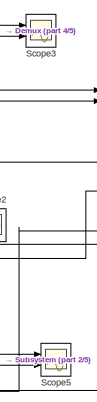
[diagram: root canvas - part 1/5, top right region]
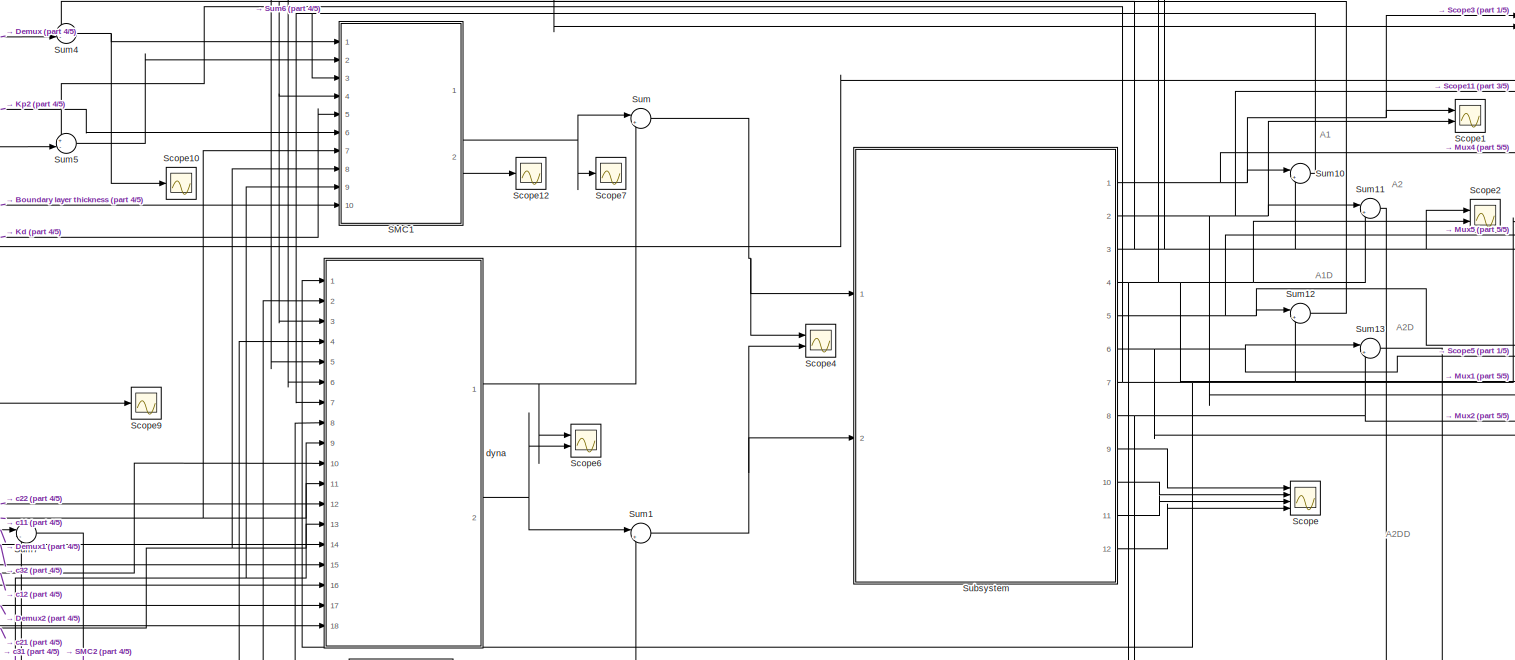
[diagram: root canvas - part 2/5, central region]
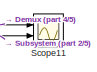
[diagram: root canvas - part 3/5, top right region]
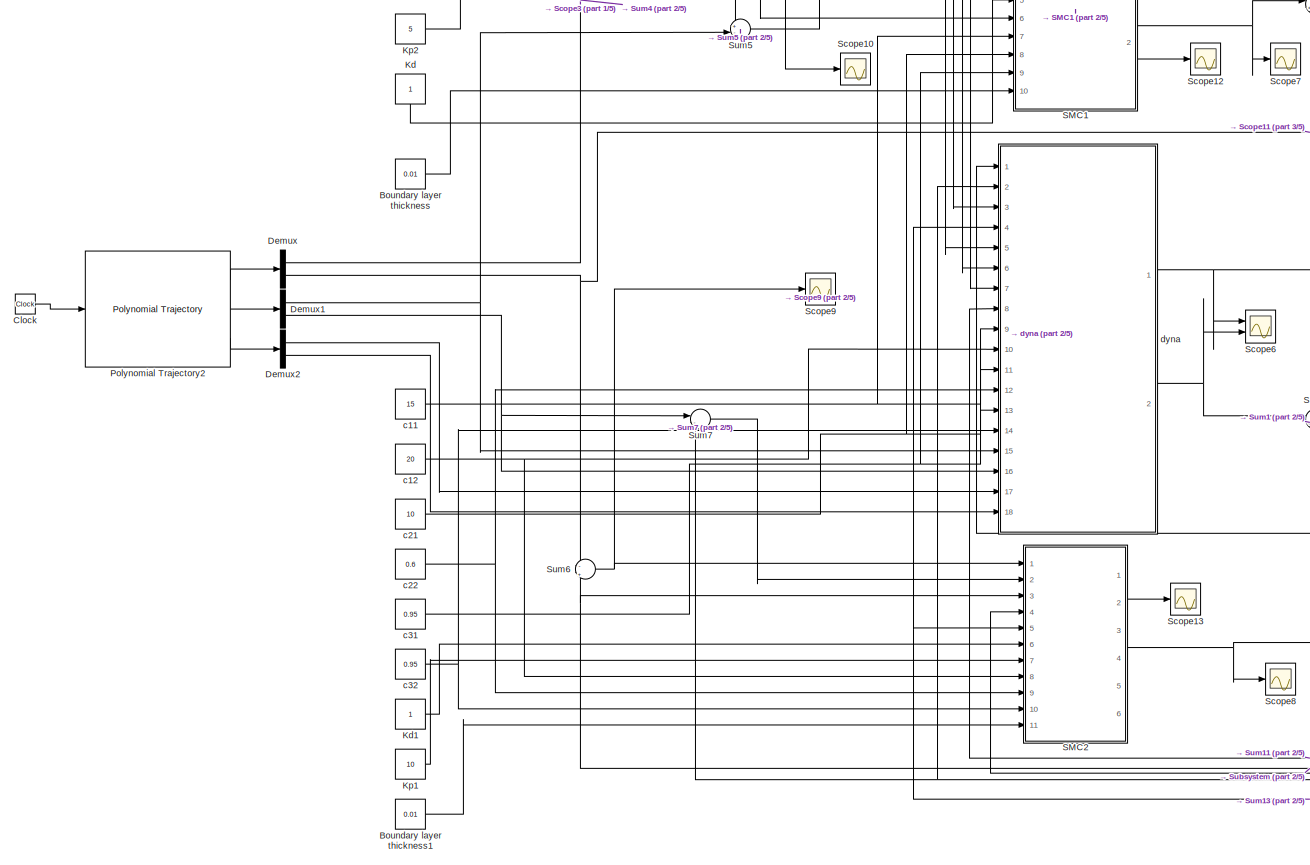
[diagram: root canvas - part 4/5, left side, full height]
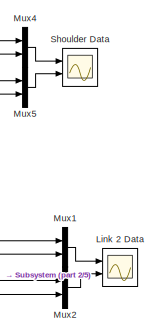
[diagram: root canvas - part 5/5, middle right region]
MODEL slx_13c0320053fd
KIND model
CONFIG AbsTol = auto
CONFIG EnableMultiTasking = off
CONFIG FixedStep = 0.002
CONFIG MaxStep = auto
CONFIG MinStep = auto
CONFIG RelTol = 1e-3
CONFIG SampleTimeConstraint = Unconstrained
CONFIG Solver = FixedStepAuto
CONFIG SolverName = FixedStepAuto
CONFIG StartTime = 0.0
CONFIG StopTime = 10.0
BLOCK [Constant] Boundary layer thickness
  Value = 0.01
BLOCK [Constant] Boundary layer thickness1
  Value = 0.01
  VectorParams1D = off
BLOCK [Clock] Clock
BLOCK [Demux] Demux
  DisplayOption = bar
  Outputs = 2
  Ports = [1, 2]
BLOCK [Demux] Demux1
  DisplayOption = bar
  Outputs = 2
  Ports = [1, 2]
BLOCK [Demux] Demux2
  DisplayOption = bar
  Outputs = 2
  Ports = [1, 2]
BLOCK [Constant] Kd
BLOCK [Constant] Kd1
BLOCK [Constant] Kp1
  Value = 10
BLOCK [Constant] Kp2
  Value = 5
BLOCK [Scope] Link 2 Data
  Floating = off
  NumInputPorts = 2
  Ports = [2]
  ScopeSpecificationString = Simulink.scopes.TimeScopeBlockCfg('CurrentConfiguration', extmgr.ConfigurationSet(extmgr.Configuration('Core','General UI',true,'FigureColor',[0.831372549019608 0.815686274509804 0.784313725490196]),extmgr.Configuration('Core','Source UI',true),extmgr.Configuration('Sources','WiredSimulink',true,'DataLoggingVariableName','ScopeData1','DataLoggingSaveFormat','StructureWithTime','DataLoggingDecimati...<+2980ch>
BLOCK [Mux] Mux1
  DisplayOption = bar
  Inputs = 2
  Ports = [2, 1]
BLOCK [Mux] Mux2
  DisplayOption = bar
  Inputs = 2
  Ports = [2, 1]
BLOCK [Mux] Mux4
  DisplayOption = bar
  Inputs = 2
  Ports = [2, 1]
BLOCK [Mux] Mux5
  DisplayOption = bar
  Inputs = 2
  Ports = [2, 1]
BLOCK [Reference] Polynomial Trajectory2  REF=robotcorelib/Polynomial Trajectory
  Ports = [1, 3]
  SourceBlock = robotcorelib/Polynomial Trajectory
  SourceProductBaseCode = RO
  SourceProductName = Robotics System Toolbox
  SourceType = robotics.slcore.internal.block.PolyTrajSys
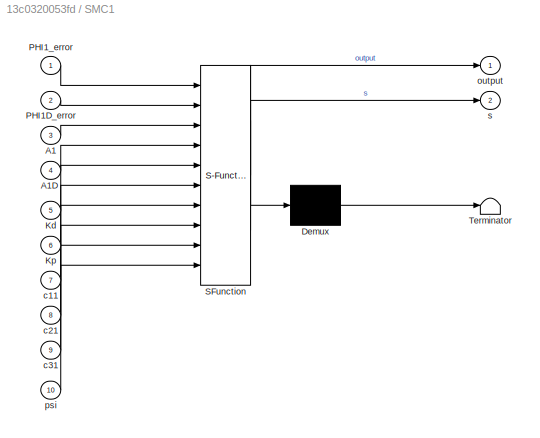
BLOCK [SubSystem] SMC1
  ErrorFcn = Stateflow.Translate.translate
  PermitHierarchicalResolution = ExplicitOnly
  Ports = [10, 2]
  RequestExecContextInheritance = off
  SFBlockType = MATLAB Function
  TreatAsAtomicUnit = on
BLOCK [Demux] SMC1/ Demux 
  Outputs = 1
  Ports = [1, 1]
BLOCK [S-Function] SMC1/ SFunction 
  EnableBusSupport = on
  FunctionName = sf_sfun
  PortCounts = [10 3]
  Ports = [10, 3]
  SFcnIsStateOwnerBlock = off
  SFunctionDeploymentMode = off
  Tag = Stateflow S-Function 3
BLOCK [Terminator] SMC1/ Terminator 
BLOCK [Inport] SMC1/A1
  IconDisplay = Port number
  Port = 3
BLOCK [Inport] SMC1/A1D
  IconDisplay = Port number
  Port = 4
BLOCK [Inport] SMC1/Kd
  IconDisplay = Port number
  Port = 5
BLOCK [Inport] SMC1/Kp
  IconDisplay = Port number
  Port = 6
BLOCK [Inport] SMC1/PHI1D_error
  IconDisplay = Port number
  Port = 2
BLOCK [Inport] SMC1/PHI1_error
  IconDisplay = Port number
BLOCK [Inport] SMC1/c11
  IconDisplay = Port number
  Port = 7
BLOCK [Inport] SMC1/c21
  IconDisplay = Port number
  Port = 8
BLOCK [Inport] SMC1/c31
  IconDisplay = Port number
  Port = 9
BLOCK [Outport] SMC1/output
  IconDisplay = Port number
BLOCK [Inport] SMC1/psi
  IconDisplay = Port number
  Port = 10
BLOCK [Outport] SMC1/s
  IconDisplay = Port number
  Port = 2
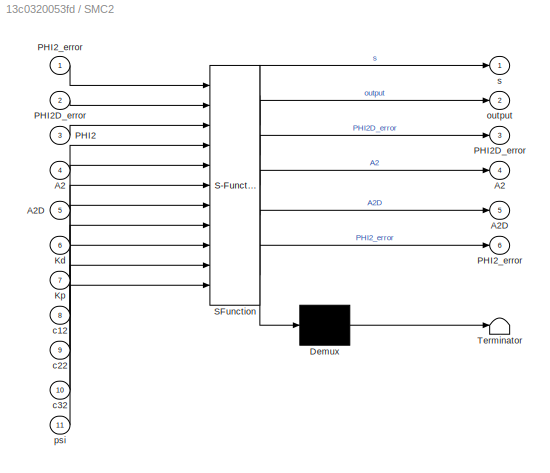
BLOCK [SubSystem] SMC2
  ErrorFcn = Stateflow.Translate.translate
  PermitHierarchicalResolution = ExplicitOnly
  Ports = [11, 6]
  RequestExecContextInheritance = off
  SFBlockType = MATLAB Function
  TreatAsAtomicUnit = on
BLOCK [Demux] SMC2/ Demux 
  Outputs = 1
  Ports = [1, 1]
BLOCK [S-Function] SMC2/ SFunction 
  EnableBusSupport = on
  FunctionName = sf_sfun
  PortCounts = [11 7]
  Ports = [11, 7]
  SFcnIsStateOwnerBlock = off
  SFunctionDeploymentMode = off
  Tag = Stateflow S-Function 5
BLOCK [Terminator] SMC2/ Terminator 
BLOCK [Outport] SMC2/A2
  IconDisplay = Port number
  Port = 4
BLOCK [Inport] SMC2/A2 
  IconDisplay = Port number
  Port = 4
BLOCK [Outport] SMC2/A2D
  IconDisplay = Port number
  Port = 5
BLOCK [Inport] SMC2/A2D 
  IconDisplay = Port number
  Port = 5
BLOCK [Inport] SMC2/Kd
  IconDisplay = Port number
  Port = 6
BLOCK [Inport] SMC2/Kp
  IconDisplay = Port number
  Port = 7
BLOCK [Inport] SMC2/PHI2
  IconDisplay = Port number
  Port = 3
BLOCK [Outport] SMC2/PHI2D_error
  IconDisplay = Port number
  Port = 3
BLOCK [Inport] SMC2/PHI2D_error 
  IconDisplay = Port number
  Port = 2
BLOCK [Outport] SMC2/PHI2_error
  IconDisplay = Port number
  Port = 6
BLOCK [Inport] SMC2/PHI2_error 
  IconDisplay = Port number
BLOCK [Inport] SMC2/c12
  IconDisplay = Port number
  Port = 8
BLOCK [Inport] SMC2/c22
  IconDisplay = Port number
  Port = 9
BLOCK [Inport] SMC2/c32
  IconDisplay = Port number
  Port = 10
BLOCK [Outport] SMC2/output
  IconDisplay = Port number
  Port = 2
BLOCK [Inport] SMC2/psi
  IconDisplay = Port number
  Port = 11
BLOCK [Outport] SMC2/s
  IconDisplay = Port number
BLOCK [Scope] Scope
  Floating = off
  NumInputPorts = 4
  Ports = [4]
  ScopeSpecificationString = Simulink.scopes.TimeScopeBlockCfg('CurrentConfiguration', extmgr.ConfigurationSet(extmgr.Configuration('Core','General UI',true),extmgr.Configuration('Core','Source UI',true),extmgr.Configuration('Sources','WiredSimulink',true,'DataLoggingVariableName','ScopeData2'),extmgr.Configuration('Visuals','Time Domain',true,'SerializedDisplays',{struct('MinYLimReal','-75.9498','MaxYLimReal','289.88758','YL...<+1452ch>
BLOCK [Scope] Scope1
  Floating = off
  NumInputPorts = 2
  Ports = [2]
  ScopeSpecificationString = Simulink.scopes.TimeScopeBlockCfg('CurrentConfiguration', extmgr.ConfigurationSet(extmgr.Configuration('Core','General UI',true),extmgr.Configuration('Core','Source UI',true),extmgr.Configuration('Sources','WiredSimulink',true,'DataLoggingVariableName','ScopeData3'),extmgr.Configuration('Visuals','Time Domain',true,'SerializedDisplays',{struct('MinYLimReal','-0.19681','MaxYLimReal','1.76842','YLab...<+1471ch>
BLOCK [Scope] Scope10
  Floating = off
  NumInputPorts = 1
  Ports = [1]
  ScopeSpecificationString = Simulink.scopes.TimeScopeBlockCfg('CurrentConfiguration', extmgr.ConfigurationSet(extmgr.Configuration('Core','General UI',true),extmgr.Configuration('Core','Source UI',true),extmgr.Configuration('Sources','WiredSimulink',true,'DataLoggingVariableName','ScopeData2'),extmgr.Configuration('Visuals','Time Domain',true,'SerializedDisplays',{struct('MinYLimReal','-0.0083','MaxYLimReal','0.01181','YLabe...<+1415ch>
BLOCK [Scope] Scope11
  Floating = off
  NumInputPorts = 2
  Ports = [2]
  ScopeSpecificationString = Simulink.scopes.TimeScopeBlockCfg('CurrentConfiguration', extmgr.ConfigurationSet(extmgr.Configuration('Core','General UI',true),extmgr.Configuration('Core','Source UI',true),extmgr.Configuration('Sources','WiredSimulink',true,'DataLoggingVariableName','ScopeData3'),extmgr.Configuration('Visuals','Time Domain',true,'SerializedDisplays',{struct('MinYLimReal','-0.19671','MaxYLimReal','1.77039','YLab...<+1380ch>
BLOCK [Scope] Scope12
  Floating = off
  NumInputPorts = 1
  Ports = [1]
  ScopeSpecificationString = Simulink.scopes.TimeScopeBlockCfg('CurrentConfiguration', extmgr.ConfigurationSet(extmgr.Configuration('Core','General UI',true),extmgr.Configuration('Core','Source UI',true),extmgr.Configuration('Sources','WiredSimulink',true,'DataLoggingVariableName','ScopeData1'),extmgr.Configuration('Visuals','Time Domain',true,'SerializedDisplays',{struct('MinYLimReal','-0.46375','MaxYLimReal','0.05153','YLab...<+1408ch>
BLOCK [Scope] Scope13
  Floating = off
  NumInputPorts = 1
  Ports = [1]
  ScopeSpecificationString = Simulink.scopes.TimeScopeBlockCfg('CurrentConfiguration', extmgr.ConfigurationSet(extmgr.Configuration('Core','General UI',true),extmgr.Configuration('Core','Source UI',true),extmgr.Configuration('Sources','WiredSimulink',true,'DataLoggingVariableName','ScopeData2'),extmgr.Configuration('Visuals','Time Domain',true,'SerializedDisplays',{struct('MinYLimReal','-0.52388','MaxYLimReal','0.05821','YLab...<+1421ch>
BLOCK [Scope] Scope2
  Floating = off
  NumInputPorts = 2
  Ports = [2]
  ScopeSpecificationString = Simulink.scopes.TimeScopeBlockCfg('CurrentConfiguration', extmgr.ConfigurationSet(extmgr.Configuration('Core','General UI',true),extmgr.Configuration('Core','Source UI',true),extmgr.Configuration('Sources','WiredSimulink',true,'DataLoggingVariableName','ScopeData4'),extmgr.Configuration('Visuals','Time Domain',true,'SerializedDisplays',{struct('MinYLimReal','-0.19803','MaxYLimReal','1.78223','YLab...<+1384ch>
BLOCK [Scope] Scope3
  Floating = off
  NumInputPorts = 2
  Ports = [2]
  ScopeSpecificationString = Simulink.scopes.TimeScopeBlockCfg('CurrentConfiguration', extmgr.ConfigurationSet(extmgr.Configuration('Core','General UI',true),extmgr.Configuration('Core','Source UI',true),extmgr.Configuration('Sources','WiredSimulink',true,'DataLoggingVariableName','ScopeData5'),extmgr.Configuration('Visuals','Time Domain',true,'SerializedDisplays',{struct('MinYLimReal','-0.19671','MaxYLimReal','1.77039','YLab...<+1380ch>
BLOCK [Scope] Scope4
  Floating = off
  NumInputPorts = 2
  Ports = [2]
  ScopeSpecificationString = Simulink.scopes.TimeScopeBlockCfg('CurrentConfiguration', extmgr.ConfigurationSet(extmgr.Configuration('Core','General UI',true),extmgr.Configuration('Core','Source UI',true),extmgr.Configuration('Sources','WiredSimulink',true,'DataLoggingVariableName','ScopeData6'),extmgr.Configuration('Visuals','Time Domain',true,'SerializedDisplays',{struct('MinYLimReal','-7.36','MaxYLimReal','45.54','YLabelRea...<+1455ch>
BLOCK [Scope] Scope5
  Floating = off
  NumInputPorts = 2
  Ports = [2]
  ScopeSpecificationString = Simulink.scopes.TimeScopeBlockCfg('CurrentConfiguration', extmgr.ConfigurationSet(extmgr.Configuration('Core','General UI',true),extmgr.Configuration('Core','Source UI',true),extmgr.Configuration('Sources','WiredSimulink',true,'DataLoggingVariableName','ScopeData7'),extmgr.Configuration('Visuals','Time Domain',true,'SerializedDisplays',{struct('MinYLimReal','-0.42133','MaxYLimReal','2.02135','YLab...<+1384ch>
BLOCK [Scope] Scope6
  Floating = off
  NumInputPorts = 2
  Ports = [2]
  ScopeSpecificationString = Simulink.scopes.TimeScopeBlockCfg('CurrentConfiguration', extmgr.ConfigurationSet(extmgr.Configuration('Core','General UI',true),extmgr.Configuration('Core','Source UI',true),extmgr.Configuration('Sources','WiredSimulink',true,'DataLoggingVariableName','ScopeData8'),extmgr.Configuration('Visuals','Time Domain',true,'SerializedDisplays',{struct('MinYLimReal','-34.31183','MaxYLimReal','4.12799','YLa...<+1409ch>
BLOCK [Scope] Scope7
  Floating = off
  NumInputPorts = 1
  Ports = [1]
  ScopeSpecificationString = Simulink.scopes.TimeScopeBlockCfg('CurrentConfiguration', extmgr.ConfigurationSet(extmgr.Configuration('Core','General UI',true),extmgr.Configuration('Core','Source UI',true),extmgr.Configuration('Sources','WiredSimulink',true,'DataLoggingVariableName','ScopeData9'),extmgr.Configuration('Visuals','Time Domain',true,'SerializedDisplays',{struct('MinYLimReal','-4.60476','MaxYLimReal','37.78942','YLa...<+1386ch>
BLOCK [Scope] Scope8
  Floating = off
  NumInputPorts = 1
  Ports = [1]
  ScopeSpecificationString = Simulink.scopes.TimeScopeBlockCfg('CurrentConfiguration', extmgr.ConfigurationSet(extmgr.Configuration('Core','General UI',true),extmgr.Configuration('Core','Source UI',true),extmgr.Configuration('Sources','WiredSimulink',true,'DataLoggingVariableName','ScopeData10'),extmgr.Configuration('Visuals','Time Domain',true,'SerializedDisplays',{struct('MinYLimReal','-0.03677','MaxYLimReal','0.33092','YLa...<+1371ch>
BLOCK [Scope] Scope9
  Floating = off
  NumInputPorts = 1
  Ports = [1]
  ScopeSpecificationString = Simulink.scopes.TimeScopeBlockCfg('CurrentConfiguration', extmgr.ConfigurationSet(extmgr.Configuration('Core','General UI',true),extmgr.Configuration('Core','Source UI',true),extmgr.Configuration('Sources','WiredSimulink',true,'DataLoggingVariableName','ScopeData1'),extmgr.Configuration('Visuals','Time Domain',true,'SerializedDisplays',{struct('MinYLimReal','-0.03075','MaxYLimReal','0.00342','YLab...<+1363ch>
BLOCK [Scope] Shoulder Data
  Floating = off
  NumInputPorts = 2
  Ports = [2]
  ScopeSpecificationString = Simulink.scopes.TimeScopeBlockCfg('CurrentConfiguration', extmgr.ConfigurationSet(extmgr.Configuration('Core','General UI',true,'FigureColor',[0.831372549019608 0.815686274509804 0.784313725490196]),extmgr.Configuration('Core','Source UI',true),extmgr.Configuration('Sources','WiredSimulink',true,'DataLoggingVariableName','ScopeData11','DataLoggingSaveFormat','StructureWithTime','DataLoggingDecimat...<+2952ch>
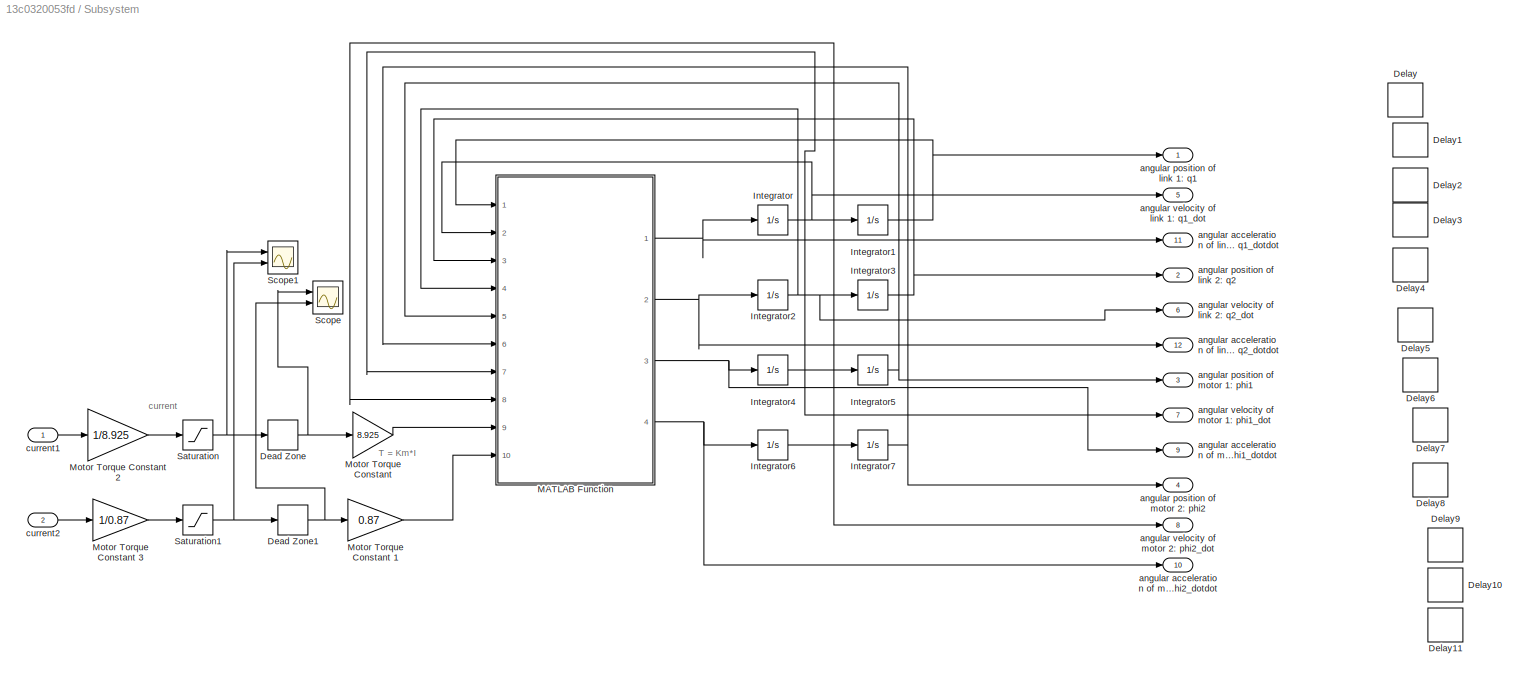
BLOCK [SubSystem] Subsystem
  Ports = [2, 12]
  RequestExecContextInheritance = off
BLOCK [DeadZone] Subsystem/Dead Zone
  LowerValue = -0.165
  UpperValue = 0.183
  ZeroCross = off
BLOCK [DeadZone] Subsystem/Dead Zone1
  LowerValue = -0.165
  UpperValue = 0.183
  ZeroCross = off
BLOCK [Delay] Subsystem/Delay
  Commented = on
  InputPortMap = u0
  Ports = [1, 1]
  SampleTime = 0.002
BLOCK [Delay] Subsystem/Delay1
  Commented = on
  InputPortMap = u0
  Ports = [1, 1]
  SampleTime = 0.002
BLOCK [Delay] Subsystem/Delay10
  Commented = on
  InputPortMap = u0
  Ports = [1, 1]
  SampleTime = 0.002
BLOCK [Delay] Subsystem/Delay11
  Commented = on
  InputPortMap = u0
  Ports = [1, 1]
  SampleTime = 0.002
BLOCK [Delay] Subsystem/Delay2
  Commented = on
  InputPortMap = u0
  Ports = [1, 1]
  SampleTime = 0.002
BLOCK [Delay] Subsystem/Delay3
  Commented = on
  InputPortMap = u0
  Ports = [1, 1]
  SampleTime = 0.002
BLOCK [Delay] Subsystem/Delay4
  Commented = on
  InputPortMap = u0
  Ports = [1, 1]
  SampleTime = 0.002
BLOCK [Delay] Subsystem/Delay5
  Commented = on
  InputPortMap = u0
  Ports = [1, 1]
  SampleTime = 0.002
BLOCK [Delay] Subsystem/Delay6
  Commented = on
  InputPortMap = u0
  Ports = [1, 1]
  SampleTime = 0.002
BLOCK [Delay] Subsystem/Delay7
  Commented = on
  InputPortMap = u0
  Ports = [1, 1]
  SampleTime = 0.002
BLOCK [Delay] Subsystem/Delay8
  Commented = on
  InputPortMap = u0
  Ports = [1, 1]
  SampleTime = 0.002
BLOCK [Delay] Subsystem/Delay9
  Commented = on
  InputPortMap = u0
  Ports = [1, 1]
  SampleTime = 0.002
BLOCK [Integrator] Subsystem/Integrator
  Ports = [1, 1]
BLOCK [Integrator] Subsystem/Integrator1
  Ports = [1, 1]
BLOCK [Integrator] Subsystem/Integrator2
  Ports = [1, 1]
BLOCK [Integrator] Subsystem/Integrator3
  Ports = [1, 1]
BLOCK [Integrator] Subsystem/Integrator4
  Ports = [1, 1]
BLOCK [Integrator] Subsystem/Integrator5
  Ports = [1, 1]
BLOCK [Integrator] Subsystem/Integrator6
  Ports = [1, 1]
BLOCK [Integrator] Subsystem/Integrator7
  Ports = [1, 1]
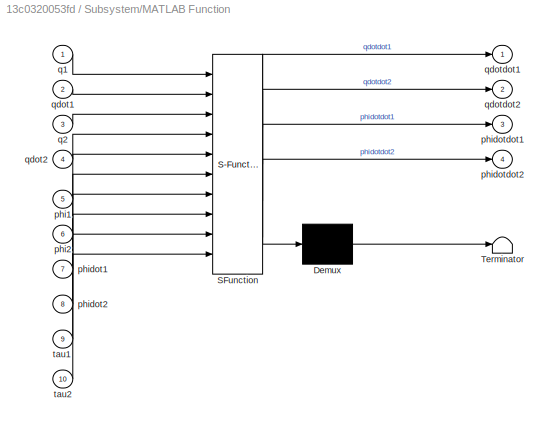
BLOCK [SubSystem] Subsystem/MATLAB Function
  ErrorFcn = Stateflow.Translate.translate
  PermitHierarchicalResolution = ExplicitOnly
  Ports = [10, 4]
  RequestExecContextInheritance = off
  SFBlockType = MATLAB Function
  TreatAsAtomicUnit = on
BLOCK [Demux] Subsystem/MATLAB Function/ Demux 
  Outputs = 1
  Ports = [1, 1]
BLOCK [S-Function] Subsystem/MATLAB Function/ SFunction 
  EnableBusSupport = on
  FunctionName = sf_sfun
  PortCounts = [10 5]
  Ports = [10, 5]
  SFcnIsStateOwnerBlock = off
  SFunctionDeploymentMode = off
  Tag = Stateflow S-Function 2
BLOCK [Terminator] Subsystem/MATLAB Function/ Terminator 
BLOCK [Inport] Subsystem/MATLAB Function/phi1
  IconDisplay = Port number
  Port = 5
BLOCK [Inport] Subsystem/MATLAB Function/phi2
  IconDisplay = Port number
  Port = 6
BLOCK [Inport] Subsystem/MATLAB Function/phidot1
  IconDisplay = Port number
  Port = 7
BLOCK [Inport] Subsystem/MATLAB Function/phidot2
  IconDisplay = Port number
  Port = 8
BLOCK [Outport] Subsystem/MATLAB Function/phidotdot1
  IconDisplay = Port number
  Port = 3
BLOCK [Outport] Subsystem/MATLAB Function/phidotdot2
  IconDisplay = Port number
  Port = 4
BLOCK [Inport] Subsystem/MATLAB Function/q1
  IconDisplay = Port number
BLOCK [Inport] Subsystem/MATLAB Function/q2
  IconDisplay = Port number
  Port = 3
BLOCK [Inport] Subsystem/MATLAB Function/qdot1
  IconDisplay = Port number
  Port = 2
BLOCK [Inport] Subsystem/MATLAB Function/qdot2
  IconDisplay = Port number
  Port = 4
BLOCK [Outport] Subsystem/MATLAB Function/qdotdot1
  IconDisplay = Port number
BLOCK [Outport] Subsystem/MATLAB Function/qdotdot2
  IconDisplay = Port number
  Port = 2
BLOCK [Inport] Subsystem/MATLAB Function/tau1
  IconDisplay = Port number
  Port = 9
BLOCK [Inport] Subsystem/MATLAB Function/tau2
  IconDisplay = Port number
  Port = 10
BLOCK [Gain] Subsystem/Motor Torque Constant 
  Gain = 8.925
  OutDataTypeStr = Inherit: Inherit via internal rule
  ParamDataTypeStr = Inherit: Inherit via internal rule
  SaturateOnIntegerOverflow = off
BLOCK [Gain] Subsystem/Motor Torque Constant 1
  Gain = 0.87
  OutDataTypeStr = Inherit: Inherit via internal rule
  ParamDataTypeStr = Inherit: Inherit via internal rule
  SaturateOnIntegerOverflow = off
BLOCK [Gain] Subsystem/Motor Torque Constant 2
  Gain = 1/8.925
  OutDataTypeStr = Inherit: Inherit via internal rule
  ParamDataTypeStr = Inherit: Inherit via internal rule
  SaturateOnIntegerOverflow = off
BLOCK [Gain] Subsystem/Motor Torque Constant 3
  Gain = 1/0.87
  OutDataTypeStr = Inherit: Inherit via internal rule
  ParamDataTypeStr = Inherit: Inherit via internal rule
  SaturateOnIntegerOverflow = off
BLOCK [Saturate] Subsystem/Saturation
  InputPortMap = u0
  LowerLimit = -0.94
  Ports = [1, 1]
  UpperLimit = 0.94
  ZeroCross = off
BLOCK [Saturate] Subsystem/Saturation1
  InputPortMap = u0
  LowerLimit = -0.94
  Ports = [1, 1]
  UpperLimit = 0.94
  ZeroCross = off
BLOCK [Scope] Subsystem/Scope
  Floating = off
  NumInputPorts = 2
  Ports = [2]
  ScopeSpecificationString = Simulink.scopes.TimeScopeBlockCfg('CurrentConfiguration', extmgr.ConfigurationSet(extmgr.Configuration('Core','General UI',true),extmgr.Configuration('Core','Source UI',true),extmgr.Configuration('Sources','WiredSimulink',true,'DataLoggingVariableName','ScopeData1'),extmgr.Configuration('Visuals','Time Domain',true,'SerializedDisplays',{struct('MinYLimReal','-0.02919','MaxYLimReal','0.26273','YLab...<+1453ch>
BLOCK [Scope] Subsystem/Scope1
  Floating = off
  NumInputPorts = 2
  Ports = [2]
  ScopeSpecificationString = Simulink.scopes.TimeScopeBlockCfg('CurrentConfiguration', extmgr.ConfigurationSet(extmgr.Configuration('Core','General UI',true),extmgr.Configuration('Core','Source UI',true),extmgr.Configuration('Sources','WiredSimulink',true,'DataLoggingVariableName','ScopeData3'),extmgr.Configuration('Visuals','Time Domain',true,'SerializedDisplays',{struct('MinYLimReal','-0.03939','MaxYLimReal','0.4672','YLabe...<+1379ch>
BLOCK [Outport] Subsystem/angular acceleration of link 1: q1_dotdot
  IconDisplay = Port number
  Port = 11
BLOCK [Outport] Subsystem/angular acceleration of link 2: q2_dotdot
  IconDisplay = Port number
  Port = 12
BLOCK [Outport] Subsystem/angular acceleration of motor 1: phi1_dotdot
  IconDisplay = Port number
  Port = 9
BLOCK [Outport] Subsystem/angular acceleration of motor 2: phi2_dotdot
  IconDisplay = Port number
  Port = 10
BLOCK [Outport] Subsystem/angular position of link 1: q1
  IconDisplay = Port number
BLOCK [Outport] Subsystem/angular position of link 2: q2
  IconDisplay = Port number
  Port = 2
BLOCK [Outport] Subsystem/angular position of motor 1: phi1
  IconDisplay = Port number
  Port = 3
BLOCK [Outport] Subsystem/angular position of motor 2: phi2
  IconDisplay = Port number
  Port = 4
BLOCK [Outport] Subsystem/angular velocity of link 1: q1_dot
  IconDisplay = Port number
  Port = 5
BLOCK [Outport] Subsystem/angular velocity of link 2: q2_dot
  IconDisplay = Port number
  Port = 6
BLOCK [Outport] Subsystem/angular velocity of motor 1: phi1_dot
  IconDisplay = Port number
  Port = 7
BLOCK [Outport] Subsystem/angular velocity of motor 2: phi2_dot
  IconDisplay = Port number
  Port = 8
BLOCK [Inport] Subsystem/current1
  IconDisplay = Port number
BLOCK [Inport] Subsystem/current2 
  IconDisplay = Port number
  Port = 2
BLOCK [Sum] Sum
  IconShape = round
  InputSameDT = off
  Inputs = |++
  OutDataTypeStr = Inherit: Inherit via internal rule
  Ports = [2, 1]
  SaturateOnIntegerOverflow = off
BLOCK [Sum] Sum1
  IconShape = round
  InputSameDT = off
  Inputs = |++
  OutDataTypeStr = Inherit: Inherit via internal rule
  Ports = [2, 1]
  SaturateOnIntegerOverflow = off
BLOCK [Sum] Sum10
  IconShape = round
  InputSameDT = off
  Inputs = |+-
  OutDataTypeStr = Inherit: Inherit via internal rule
  Ports = [2, 1]
  SaturateOnIntegerOverflow = off
BLOCK [Sum] Sum11
  IconShape = round
  InputSameDT = off
  Inputs = |+-
  OutDataTypeStr = Inherit: Inherit via internal rule
  Ports = [2, 1]
  SaturateOnIntegerOverflow = off
BLOCK [Sum] Sum12
  IconShape = round
  InputSameDT = off
  Inputs = |+-
  OutDataTypeStr = Inherit: Inherit via internal rule
  Ports = [2, 1]
  SaturateOnIntegerOverflow = off
BLOCK [Sum] Sum13
  IconShape = round
  InputSameDT = off
  Inputs = |+-
  OutDataTypeStr = Inherit: Inherit via internal rule
  Ports = [2, 1]
  SaturateOnIntegerOverflow = off
BLOCK [Sum] Sum4
  IconShape = round
  InputSameDT = off
  Inputs = +-|
  OutDataTypeStr = Inherit: Inherit via internal rule
  Ports = [2, 1]
  SaturateOnIntegerOverflow = off
BLOCK [Sum] Sum5
  IconShape = round
  InputSameDT = off
  Inputs = +-|
  OutDataTypeStr = Inherit: Inherit via internal rule
  Ports = [2, 1]
  SaturateOnIntegerOverflow = off
BLOCK [Sum] Sum6
  IconShape = round
  InputSameDT = off
  Inputs = -|+
  OutDataTypeStr = Inherit: Inherit via internal rule
  Ports = [2, 1]
  SaturateOnIntegerOverflow = off
BLOCK [Sum] Sum7
  IconShape = round
  InputSameDT = off
  Inputs = |-+
  OutDataTypeStr = Inherit: Inherit via internal rule
  Ports = [2, 1]
  SaturateOnIntegerOverflow = off
BLOCK [Constant] c11
  Value = 15
BLOCK [Constant] c12
  Value = 20
BLOCK [Constant] c21
  Value = 10
BLOCK [Constant] c22
  Value = 0.6
BLOCK [Constant] c31
  Value = 0.95
BLOCK [Constant] c32
  Value = 0.95
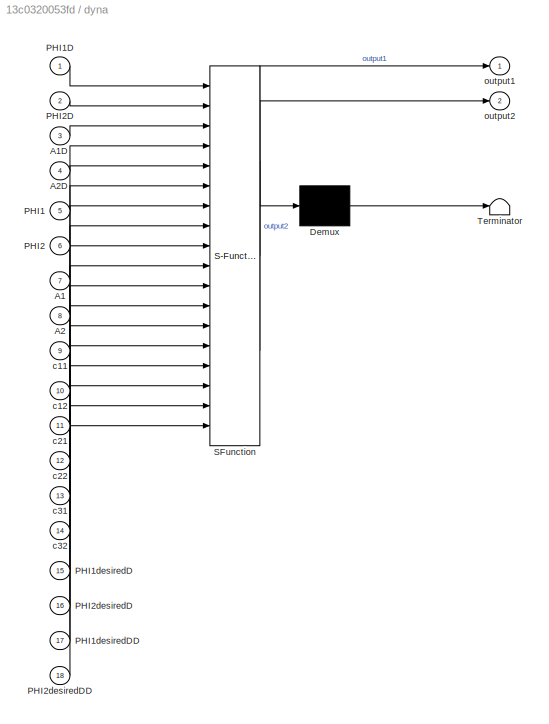
BLOCK [SubSystem] dyna
  ErrorFcn = Stateflow.Translate.translate
  PermitHierarchicalResolution = ExplicitOnly
  Ports = [18, 2]
  RequestExecContextInheritance = off
  SFBlockType = MATLAB Function
  TreatAsAtomicUnit = on
BLOCK [Demux] dyna/ Demux 
  Outputs = 1
  Ports = [1, 1]
BLOCK [S-Function] dyna/ SFunction 
  EnableBusSupport = on
  FunctionName = sf_sfun
  PortCounts = [18 3]
  Ports = [18, 3]
  SFcnIsStateOwnerBlock = off
  SFunctionDeploymentMode = off
  Tag = Stateflow S-Function 1
BLOCK [Terminator] dyna/ Terminator 
BLOCK [Inport] dyna/A1
  IconDisplay = Port number
  Port = 7
BLOCK [Inport] dyna/A1D
  IconDisplay = Port number
  Port = 3
BLOCK [Inport] dyna/A2
  IconDisplay = Port number
  Port = 8
BLOCK [Inport] dyna/A2D
  IconDisplay = Port number
  Port = 4
BLOCK [Inport] dyna/PHI1
  IconDisplay = Port number
  Port = 5
BLOCK [Inport] dyna/PHI1D
  IconDisplay = Port number
BLOCK [Inport] dyna/PHI1desiredD
  IconDisplay = Port number
  Port = 15
BLOCK [Inport] dyna/PHI1desiredDD
  IconDisplay = Port number
  Port = 17
BLOCK [Inport] dyna/PHI2
  IconDisplay = Port number
  Port = 6
BLOCK [Inport] dyna/PHI2D
  IconDisplay = Port number
  Port = 2
BLOCK [Inport] dyna/PHI2desiredD
  IconDisplay = Port number
  Port = 16
BLOCK [Inport] dyna/PHI2desiredDD
  IconDisplay = Port number
  Port = 18
BLOCK [Inport] dyna/c11
  IconDisplay = Port number
  Port = 9
BLOCK [Inport] dyna/c12
  IconDisplay = Port number
  Port = 10
BLOCK [Inport] dyna/c21
  IconDisplay = Port number
  Port = 11
BLOCK [Inport] dyna/c22
  IconDisplay = Port number
  Port = 12
BLOCK [Inport] dyna/c31
  IconDisplay = Port number
  Port = 13
BLOCK [Inport] dyna/c32
  IconDisplay = Port number
  Port = 14
BLOCK [Outport] dyna/output1
  IconDisplay = Port number
BLOCK [Outport] dyna/output2
  IconDisplay = Port number
  Port = 2
ANNOTATION (root): A1
ANNOTATION (root): A1D
ANNOTATION (root): A2
ANNOTATION (root): A2D
ANNOTATION (root): A2DD
ANNOTATION Subsystem: T = Km*I
ANNOTATION Subsystem: current
LINE Boundary layer thickness1:1 -> SMC2:11
LINE Boundary layer thickness:1 -> SMC1:10
LINE Clock:1 -> Polynomial Trajectory2:1
NET Demux1:1 -> Sum5:2, dyna:15
NET Demux1:2 -> Sum7:1, dyna:16
LINE Demux2:1 -> dyna:17
LINE Demux2:2 -> dyna:18
NET Demux:1 -> Scope3:2, Sum4:2
NET Demux:2 -> Scope11:1, Sum6:1
LINE Kd1:1 -> SMC2:6
LINE Kd:1 -> SMC1:5
LINE Kp1:1 -> SMC2:7
LINE Kp2:1 -> SMC1:6
LINE Mux1:1 -> Link 2 Data:1
LINE Mux2:1 -> Link 2 Data:2
LINE Mux4:1 -> Shoulder Data:1
LINE Mux5:1 -> Shoulder Data:2
LINE Polynomial Trajectory2:1 -> Demux:1
LINE Polynomial Trajectory2:2 -> Demux1:1
LINE Polynomial Trajectory2:3 -> Demux2:1
NET SMC1:1 -> Scope7:1, Sum:1
LINE SMC1:2 -> Scope12:1
LINE SMC2:1 -> Scope13:1
NET SMC2:2 -> Scope8:1, Sum1:2
NET Subsystem/Dead Zone1:1 -> Subsystem/Motor Torque Constant 1:1, Subsystem/Scope:2
NET Subsystem/Dead Zone:1 -> Subsystem/Motor Torque Constant :1, Subsystem/Scope:1
NET Subsystem/Integrator1:1 -> Subsystem/MATLAB Function:1, Subsystem/angular position of link 1: q1:1
NET Subsystem/Integrator2:1 -> Subsystem/Integrator3:1, Subsystem/MATLAB Function:4, Subsystem/angular velocity of link 2: q2_dot:1
NET Subsystem/Integrator3:1 -> Subsystem/MATLAB Function:3, Subsystem/angular position of link 2: q2:1
NET Subsystem/Integrator4:1 -> Subsystem/Integrator5:1, Subsystem/MATLAB Function:7, Subsystem/angular velocity of motor 1: phi1_dot:1
NET Subsystem/Integrator5:1 -> Subsystem/MATLAB Function:5, Subsystem/angular position of motor 1: phi1:1
NET Subsystem/Integrator6:1 -> Subsystem/Integrator7:1, Subsystem/MATLAB Function:8, Subsystem/angular velocity of motor 2: phi2_dot:1
NET Subsystem/Integrator7:1 -> Subsystem/MATLAB Function:6, Subsystem/angular position of motor 2: phi2:1
NET Subsystem/Integrator:1 -> Subsystem/Integrator1:1, Subsystem/MATLAB Function:2, Subsystem/angular velocity of link 1: q1_dot:1
NET Subsystem/MATLAB Function:1 -> Subsystem/Integrator:1, Subsystem/angular acceleration of link 1: q1_dotdot:1
NET Subsystem/MATLAB Function:2 -> Subsystem/Integrator2:1, Subsystem/angular acceleration of link 2: q2_dotdot:1
NET Subsystem/MATLAB Function:3 -> Subsystem/Integrator4:1, Subsystem/angular acceleration of motor 1: phi1_dotdot:1
NET Subsystem/MATLAB Function:4 -> Subsystem/Integrator6:1, Subsystem/angular acceleration of motor 2: phi2_dotdot:1
LINE Subsystem/Motor Torque Constant 1:1 -> Subsystem/MATLAB Function:10
LINE Subsystem/Motor Torque Constant 2:1 -> Subsystem/Saturation:1
LINE Subsystem/Motor Torque Constant 3:1 -> Subsystem/Saturation1:1
LINE Subsystem/Motor Torque Constant :1 -> Subsystem/MATLAB Function:9
NET Subsystem/Saturation1:1 -> Subsystem/Dead Zone1:1, Subsystem/Scope1:2
NET Subsystem/Saturation:1 -> Subsystem/Dead Zone:1, Subsystem/Scope1:1
LINE Subsystem/current1:1 -> Subsystem/Motor Torque Constant 2:1
LINE Subsystem/current2 :1 -> Subsystem/Motor Torque Constant 3:1
NET Subsystem:1 -> Mux4:2, Scope1:1, Scope3:1, Sum10:1
LINE Subsystem:10 -> Scope:2
LINE Subsystem:11 -> Scope:3
LINE Subsystem:12 -> Scope:4
NET Subsystem:2 -> Mux1:2, Scope11:2, Scope1:2, Sum11:1
NET Subsystem:3 -> Mux4:1, Scope2:1, Sum10:2, Sum4:1, dyna:5
NET Subsystem:4 -> Mux1:1, SMC2:3, Scope2:2, Sum11:2, Sum6:2, dyna:6
NET Subsystem:5 -> Mux5:2, Scope5:1, Sum12:1
NET Subsystem:6 -> Mux2:2, Scope5:2, Sum13:1
NET Subsystem:7 -> Mux5:1, Sum12:2, Sum5:1, dyna:1
NET Subsystem:8 -> Mux2:1, Sum13:2, Sum7:2, dyna:2
LINE Subsystem:9 -> Scope:1
NET Sum10:1 -> SMC1:3, dyna:7
NET Sum11:1 -> SMC2:4, dyna:8
NET Sum12:1 -> SMC1:4, dyna:3
NET Sum13:1 -> SMC2:5, dyna:4
NET Sum1:1 -> Scope4:2, Subsystem:2
NET Sum4:1 -> SMC1:1, Scope10:1
LINE Sum5:1 -> SMC1:2
NET Sum6:1 -> SMC2:1, Scope9:1
LINE Sum7:1 -> SMC2:2
NET Sum:1 -> Scope4:1, Subsystem:1
NET c11:1 -> SMC1:7, dyna:9
NET c12:1 -> SMC2:8, dyna:10
NET c21:1 -> SMC1:8, dyna:11
NET c22:1 -> SMC2:9, dyna:12
NET c31:1 -> SMC1:9, dyna:13
NET c32:1 -> SMC2:10, dyna:14
NET dyna:1 -> Scope6:1, Sum:2
NET dyna:2 -> Scope6:2, Sum1:1
note: NET lines group one-source signal fan-out (src -> all destinations, sorted); 1:1 wires keep LINE
CHART dyna states=1 transitions=1
  STATE_LABEL 'eML_blk_kernel()'
  STATE_LABEL 'SCRIPT:\nfunction [output1, output2]= dyna(PHI1D, PHI2D,A1D, A2D, PHI1, PHI2, A1, A2, c11, c12, c21, c22, c31, c32, PHI1desiredD, PHI2desiredD,PHI1desiredDD,PHI2desiredDD)\n%Electrical School values\nL1 = 0.343;\nL2 = 0.267;\nLc1 = 0.1590;\nLc2 = 0.0550;\nm1 = 1.51;\nm2 = 0.87326;\nI1 = 0.0392;\nI2 = 0.0081;\nB1 = 0.070364;\nB2 = 0.028211;\nBm1 =4.5;\nBm2 = 0.5;\nKs1 = 9;\nKs2 = 4;\nIr1 = 0.0628;\nIr2 = 0.0026;\n   ...<+3608ch>'
CHART Subsystem/MATLAB Function states=1 transitions=1
  STATE_LABEL 'eML_blk_kernel()'
  STATE_LABEL 'SCRIPT:\nfunction [qdotdot1,qdotdot2,phidotdot1,phidotdot2] = fcn(q1,qdot1,q2,qdot2,phi1,phi2,phidot1,phidot2,tau1,tau2)\n%y is thetadotdot\ntau = [0;0;tau1;tau2];\n%Veltman Thesis Values\n% m1 = 0.5; \n% m2 = 1;\n% L1 = 0.343;\n% L2 = 0.267;\n% Lc1 = 0.2;\n% Lc2 = 0.25;\n% I1 = 0.01;\n% I2 = 0.01;\n% B1 = 0.070364;\n% B2 = 0.028211;\n\n%Electrical School values\nL1 = 0.343;\nL2 = 0.267;\nLc1 = 0.1590;\nLc2 = 0.0550;...<+936ch>'
CHART SMC1 states=1 transitions=1
  STATE_LABEL 'eML_blk_kernel()'
  STATE_LABEL 'SCRIPT:\nfunction [output,s] = smc(PHI1_error, PHI1D_error, A1, A1D, Kd, Kp, c11, c21, c31, psi)\n\n    L1 = 0.343;\n    L2 = 0.267;\n    Lc1 = 0.1590;\n    Lc2 = 0.0550;\n    m1 = 1.51;\n    m2 = 0.87326;\n    I1 = 0.0392;\n    I2 = 0.0081;\n    B1 = 0.070364;\n    B2 = 0.028211;\n    Bm1 =4.5;\n    Bm2 = 0.5;\n    Ks1 = 9;\n    Ks2 = 4;\n    Ir1 = 0.0628;\n    Ir2 = 0.0026;\n    A1desired = 0;\n    A1desiredD = 0;\n...<+276ch>'
CHART SMC2 states=1 transitions=1
  STATE_LABEL 'eML_blk_kernel()'
  STATE_LABEL 'SCRIPT:\nfunction [s,output,PHI2D_error,A2,A2D,PHI2_error] = smc(PHI2_error, PHI2D_error,PHI2, A2,A2D, Kd, Kp, c12, c22, c32, psi)\n\n\n    A2desired = 0;\n    A2desiredD = 0;\n    L1 = 0.343;\n    L2 = 0.267;\n    Lc1 = 0.1590;\n    Lc2 = 0.0550;\n    m1 = 1.51;\n    m2 = 0.87326;\n    I1 = 0.0392;\n    I2 = 0.0081;\n    B1 = 0.070364;\n    B2 = 0.028211;\n    Bm1 =4.5;\n    Bm2 = 0.5;\n    Ks1 = 9;\n    Ks2 = 4;\n ...<+601ch>'
